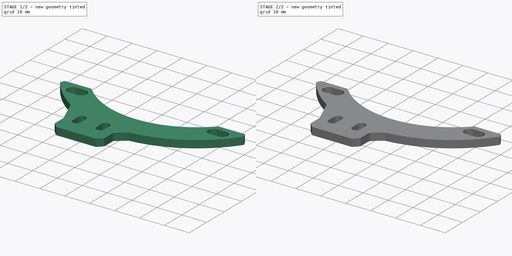
[diagram: build sequence overview — one tinted view per stage of 2, left to right]
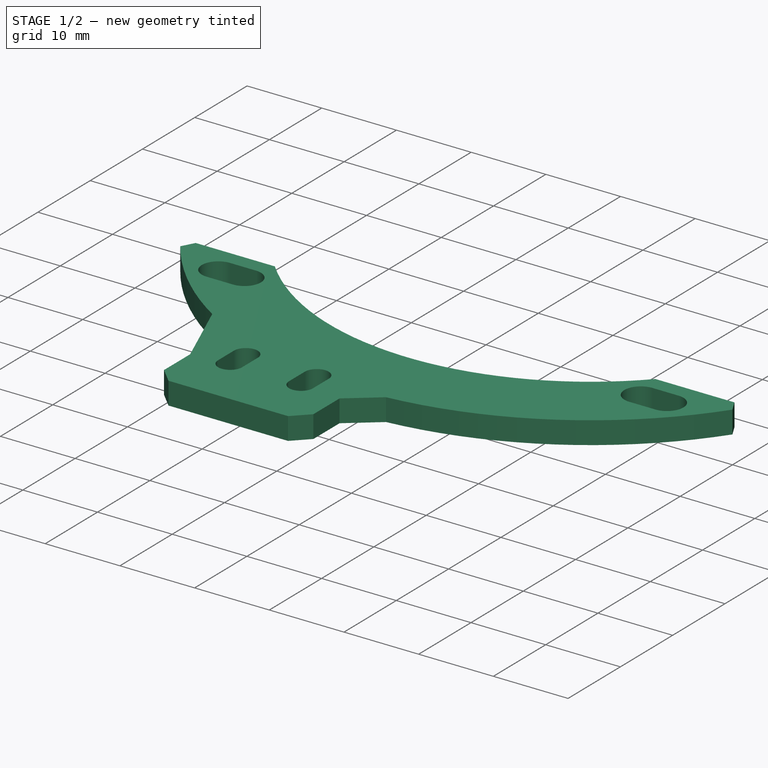
[diagram: stage 1 of 2 — iso view after this stage's code; geometry added in this stage tinted green]
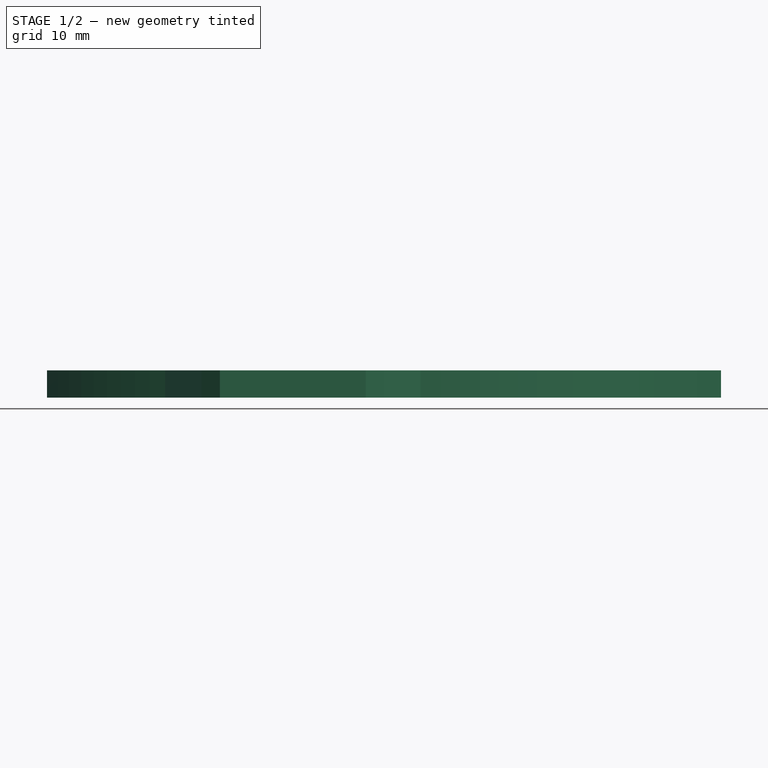
[diagram: stage 1 of 2 — front view after this stage's code; geometry added in this stage tinted green]
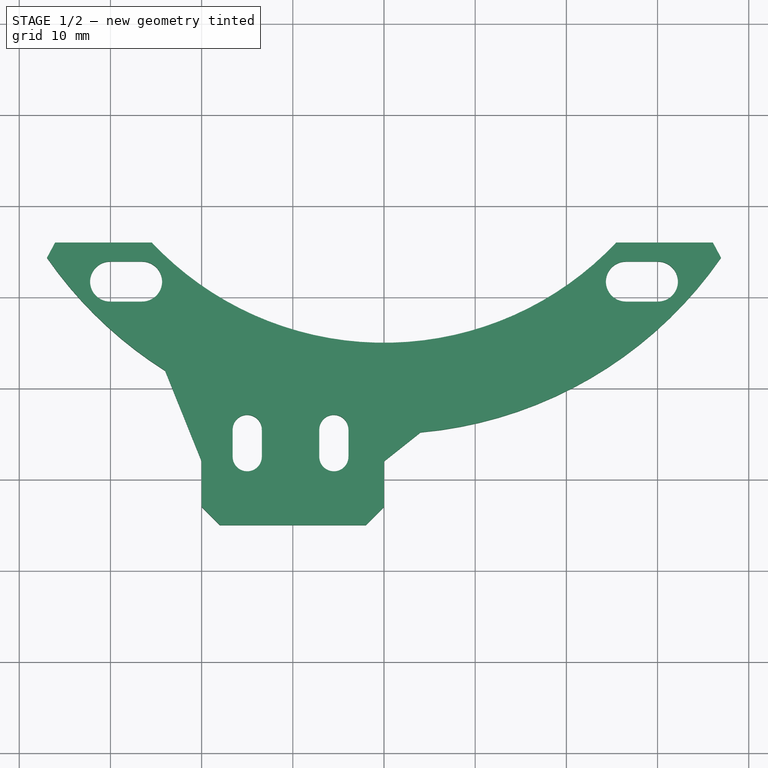
[diagram: stage 1 of 2 — top view after this stage's code; geometry added in this stage tinted green]
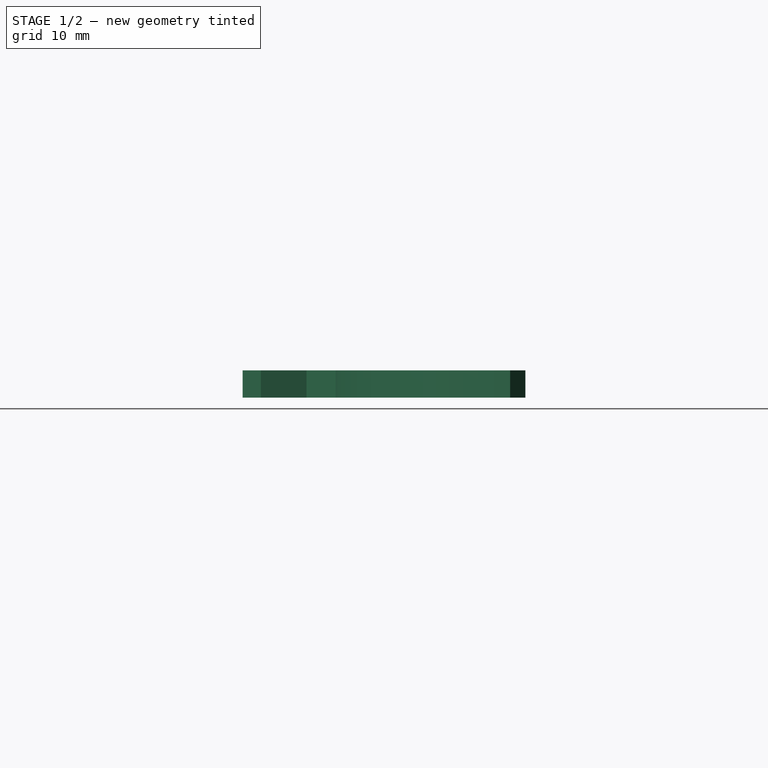
[diagram: stage 1 of 2 — right view after this stage's code; geometry added in this stage tinted green]
FCSTD DOCUMENT  (FreeCAD 0.17R5235 (Git shallow))
Label: C1042-1_endstop_mount
License: CreativeCommons Attribution-ShareAlike
LicenseURL: http://creativecommons.org/licenses/by-sa/4.0/
objects: Sketcher::SketchObject×1, PartDesign::Pad×1, PartDesign::Chamfer×1, PartDesign::Fillet×1, PartDesign::Body×1, App::Part×1, TechDraw::DrawSVGTemplate×1, TechDraw::DrawProjGroupItem×1, TechDraw::DrawProjGroup×1, TechDraw::DrawPage×1
note: 6 computed .brp shape members not serialized (recipe doc carries the construction recipe); baked Part::Feature solids carry a one-line shape summary decoded from their .brp

FEATURE [Sketcher::SketchObject] Sketch
  MapMode = 5
  Support = -> [XY_Plane001]
  sketch-geometry (36):
    g0: Circle [constr] CenterX=0 CenterY=0 CenterZ=0 NormalX=0 NormalY=0 NormalZ=1 AngleXU=0 Radius=34
    g1: LineSegment [constr] StartX=0 StartY=0 StartZ=0 EndX=28.2843 EndY=-28.2843 EndZ=0
    g2: ArcOfCircle CenterX=0 CenterY=0 CenterZ=0 NormalX=0 NormalY=0 NormalZ=1 AngleXU=0 Radius=35 StartAngle=3.89718 EndAngle=5.5276
    g3: LineSegment StartX=-25.4755 StartY=-24 StartZ=0 EndX=-38.0657 EndY=-24 EndZ=0
    g4: LineSegment StartX=25.4755 StartY=-24 StartZ=0 EndX=38.0657 EndY=-24 EndZ=0
    g5: LineSegment StartX=0 StartY=-48 StartZ=0 EndX=0 EndY=-55 EndZ=0
    g6: LineSegment StartX=0 StartY=-55 StartZ=0 EndX=-20 EndY=-55 EndZ=0
    g7: LineSegment StartX=-20 StartY=-55 StartZ=0 EndX=-20 EndY=-48 EndZ=0
    g8: ArcOfCircle CenterX=0 CenterY=0 CenterZ=0 NormalX=0 NormalY=0 NormalZ=1 AngleXU=0 Radius=45 StartAngle=3.70413 EndAngle=4.14985
    g9: ArcOfCircle CenterX=0 CenterY=0 CenterZ=0 NormalX=0 NormalY=0 NormalZ=1 AngleXU=0 Radius=45 StartAngle=4.8014 EndAngle=5.72065
    g10: GeomPoint [constr] X=28.2843 Y=-28.2843 Z=0
    g11: GeomPoint [constr] X=-28.2843 Y=-28.2843 Z=0
    g12: ArcOfCircle CenterX=-30.0343 CenterY=-28.2843 CenterZ=0 NormalX=0 NormalY=0 NormalZ=1 AngleXU=0 Radius=2.2 StartAngle=1.5708 EndAngle=4.71239
    g13: ArcOfCircle CenterX=-26.5343 CenterY=-28.2843 CenterZ=0 NormalX=0 NormalY=0 NormalZ=1 AngleXU=0 Radius=2.2 StartAngle=4.71239 EndAngle=7.85398
    g14: LineSegment StartX=-30.0343 StartY=-30.4843 StartZ=0 EndX=-26.5343 EndY=-30.4843 EndZ=0
    g15: LineSegment StartX=-30.0343 StartY=-26.0843 StartZ=0 EndX=-26.5343 EndY=-26.0843 EndZ=0
    g16: ArcOfCircle CenterX=26.5343 CenterY=-28.2843 CenterZ=0 NormalX=0 NormalY=0 NormalZ=1 AngleXU=0 Radius=2.2 StartAngle=1.5708 EndAngle=4.71239
    g17: ArcOfCircle CenterX=30.0343 CenterY=-28.2843 CenterZ=0 NormalX=0 NormalY=0 NormalZ=1 AngleXU=0 Radius=2.2 StartAngle=4.71239 EndAngle=7.85398
    g18: LineSegment StartX=26.5343 StartY=-30.4843 StartZ=0 EndX=30.0343 EndY=-30.4843 EndZ=0
    g19: LineSegment StartX=26.5343 StartY=-26.0843 StartZ=0 EndX=30.0343 EndY=-26.0843 EndZ=0
    g20: LineSegment [constr] StartX=28.2843 StartY=-26.0843 StartZ=0 EndX=28.2843 EndY=-30.4843 EndZ=0
    g21: LineSegment [constr] StartX=-28.2843 StartY=-26.0843 StartZ=0 EndX=-28.2843 EndY=-30.4843 EndZ=0
    g22: LineSegment [constr] StartX=26.5343 StartY=-28.2843 StartZ=0 EndX=30.0343 EndY=-28.2843 EndZ=0
    g23: LineSegment [constr] StartX=-30.0343 StartY=-28.2843 StartZ=0 EndX=-26.5343 EndY=-28.2843 EndZ=0
    g24: ArcOfCircle CenterX=-15 CenterY=-44.5 CenterZ=0 NormalX=0 NormalY=0 NormalZ=1 AngleXU=0 Radius=1.6 StartAngle=0 EndAngle=3.14159
    g25: ArcOfCircle CenterX=-15 CenterY=-47.5 CenterZ=0 NormalX=0 NormalY=0 NormalZ=1 AngleXU=0 Radius=1.6 StartAngle=3.14159 EndAngle=6.28319
    g26: LineSegment StartX=-16.6 StartY=-44.5 StartZ=0 EndX=-16.6 EndY=-47.5 EndZ=0
    g27: LineSegment StartX=-13.4 StartY=-44.5 StartZ=0 EndX=-13.4 EndY=-47.5 EndZ=0
    g28: ArcOfCircle CenterX=-5.5 CenterY=-47.5 CenterZ=0 NormalX=0 NormalY=0 NormalZ=1 AngleXU=0 Radius=1.6 StartAngle=3.14159 EndAngle=6.28319
    g29: ArcOfCircle CenterX=-5.5 CenterY=-44.5 CenterZ=0 NormalX=0 NormalY=0 NormalZ=1 AngleXU=0 Radius=1.6 StartAngle=0 EndAngle=3.14159
    g30: LineSegment StartX=-3.9 StartY=-47.5 StartZ=0 EndX=-3.9 EndY=-44.5 EndZ=0
    g31: LineSegment StartX=-7.1 StartY=-47.5 StartZ=0 EndX=-7.1 EndY=-44.5 EndZ=0
    g32: LineSegment StartX=-24 StartY=-38.0657 StartZ=0 EndX=-20 EndY=-48 EndZ=0
    g33: LineSegment StartX=0 StartY=-48 StartZ=0 EndX=4 EndY=-44.8219 EndZ=0
    g34: LineSegment [constr] StartX=-7.1 StartY=-44.5 StartZ=0 EndX=-3.9 EndY=-44.5 EndZ=0
    g35: LineSegment [constr] StartX=-7.1 StartY=-47.5 StartZ=0 EndX=-3.9 EndY=-47.5 EndZ=0
  constraints (96):
    c: PointOnObject(g0,g-2)
    c: Radius(g0) = 34
    c: Coincident(g0,g-1)
    c: Coincident(g0,g1)
    c: Angle(g1,g-1) = 0.785398
    c: Distance(g1) = 40
    c: Coincident(g2,g-1)
    c: Radius(g2) = 35
    c: Coincident(g2,g3)
    c: Horizontal(g3)
    c: Coincident(g4,g2)
    c: Horizontal(g4)
    c: PointOnObject(g2,g4)
    c: Coincident(g5,g6)
    c: Coincident(g6,g7)
    c: Horizontal(g6)
    c: Vertical(g5)
    c: Vertical(g7)
    c: Coincident(g8,g-1)
    c: Coincident(g8,g3)
    c: Coincident(g9,g-1)
    c: Coincident(g9,g4)
    c: Equal(g8,g9)
    c: Radius(g9) = 45
    c: DistanceY(g3,g-1) = 24
    c: DistanceY(g6,g-1) = 55
    c: DistanceX(g6,g6) = 20
    c: DistanceX(g5,g-1) = 0
    c: Coincident(g1,g10)
    c: Symmetric(g11,g1,g-2)
    c: Tangent(g12,g15) = 1.5708
    c: Tangent(g12,g14) = -1.5708
    c: Tangent(g14,g13) = -1.5708
    c: Tangent(g15,g13) = 1.5708
    c: Horizontal(g14)
    c: Equal(g12,g13)
    c: Tangent(g16,g19) = 1.5708
    c: Tangent(g16,g18) = -1.5708
    c: Tangent(g18,g17) = -1.5708
    c: Tangent(g19,g17) = 1.5708
    c: Horizontal(g18)
    c: Equal(g16,g17)
    c: PointOnObject(g20,g19)
    c: PointOnObject(g20,g18)
    c: Vertical(g20)
    c: PointOnObject(g1,g20)
    c: Symmetric(g17,g16,g20)
    c: PointOnObject(g21,g15)
    c: PointOnObject(g21,g14)
    c: Vertical(g21)
    c: PointOnObject(g11,g21)
    c: Symmetric(g13,g12,g21)
    c: Equal(g13,g16)
    c: Radius(g13) = 2.2
    c: Coincident(g22,g16)
    c: Coincident(g22,g17)
    c: PointOnObject(g1,g22)
    c: Coincident(g23,g12)
    c: Coincident(g23,g13)
    c: PointOnObject(g11,g23)
    c: Equal(g23,g22)
    c: DistanceX(g23,g23) = 3.5
    c: Tangent(g24,g27) = 1.5708
    c: Tangent(g24,g26) = -1.5708
    c: Tangent(g26,g25) = -1.5708
    c: Tangent(g27,g25) = 1.5708
    c: Vertical(g26)
    c: Equal(g24,g25)
    c: Tangent(g28,g31) = 1.5708
    c: Tangent(g28,g30) = -1.5708
    c: Tangent(g30,g29) = -1.5708
    c: Tangent(g31,g29) = 1.5708
    c: Vertical(g30)
    c: Equal(g28,g29)
    c: Equal(g25,g28)
    c: Radius(g28) = 1.6
    c: DistanceY(g6,g25) = 7.5
    c: DistanceY(g25,g24) = 3
    c: DistanceX(g25,g28) = 9.5
    c: PointOnObject(g32,g8)
    c: PointOnObject(g32,g7)
    c: Coincident(g32,g7)
    c: Coincident(g32,g8)
    c: Coincident(g33,g9)
    c: Coincident(g5,g33)
    c: Equal(g7,g5)
    c: DistanceY(g7,g7) = 7
    c: Coincident(g34,g29)
    c: Coincident(g34,g29)
    c: PointOnObject(g24,g34)
    c: DistanceX(g6,g25) = 5
    c: Coincident(g35,g28)
    c: Coincident(g35,g28)
    c: PointOnObject(g25,g35)
    c: DistanceX(g8,g6) = 4
    c: DistanceX(g5,g9) = 4
FEATURE [PartDesign::Pad] Pad
  Length = 3
  Length2 = 100
  Profile = -> Sketch
  Type = 0
FEATURE [PartDesign::Chamfer] Chamfer
  Base = -> Pad [Edge20,Edge11,Edge1,Edge23]
  BaseFeature = -> Pad
  Size = 2
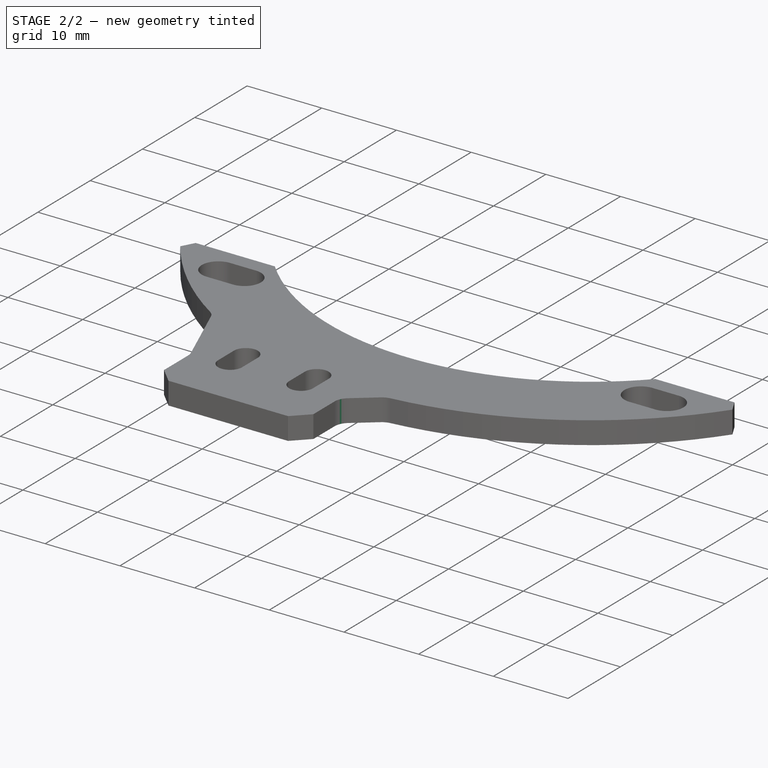
[diagram: stage 2 of 2 — iso view after this stage's code; geometry added in this stage tinted green]
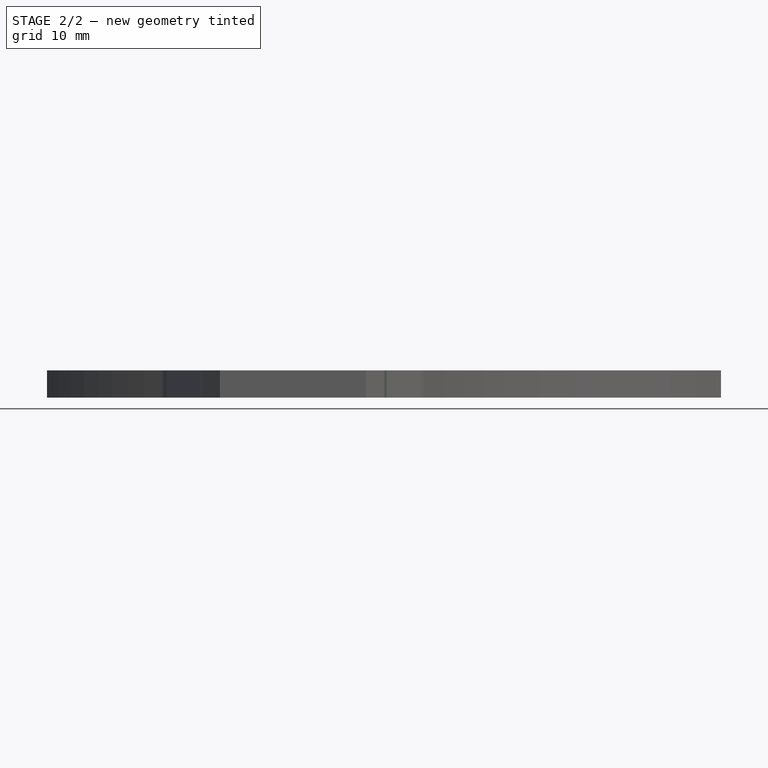
[diagram: stage 2 of 2 — front view after this stage's code; geometry added in this stage tinted green]
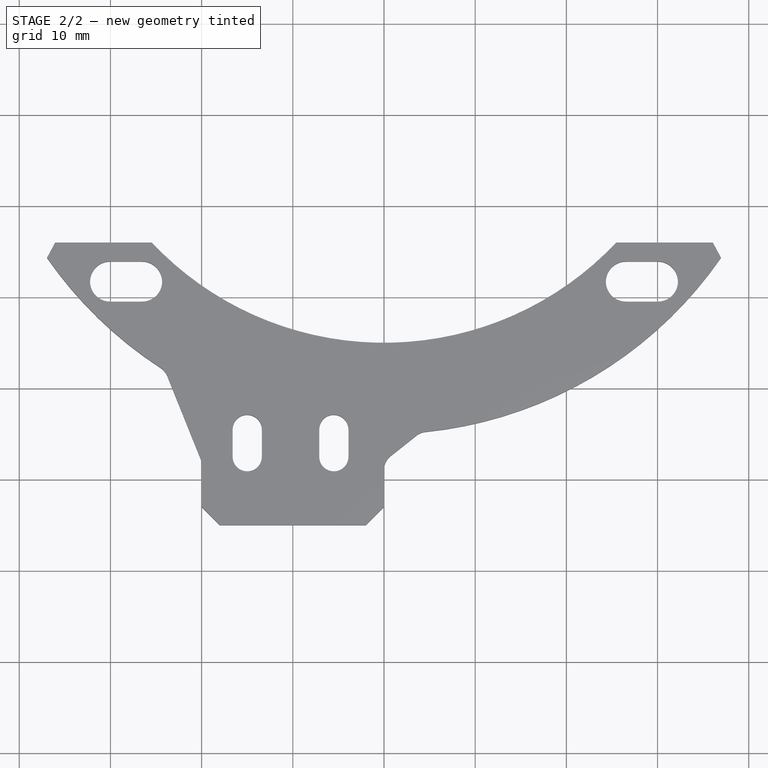
[diagram: stage 2 of 2 — top view after this stage's code; geometry added in this stage tinted green]
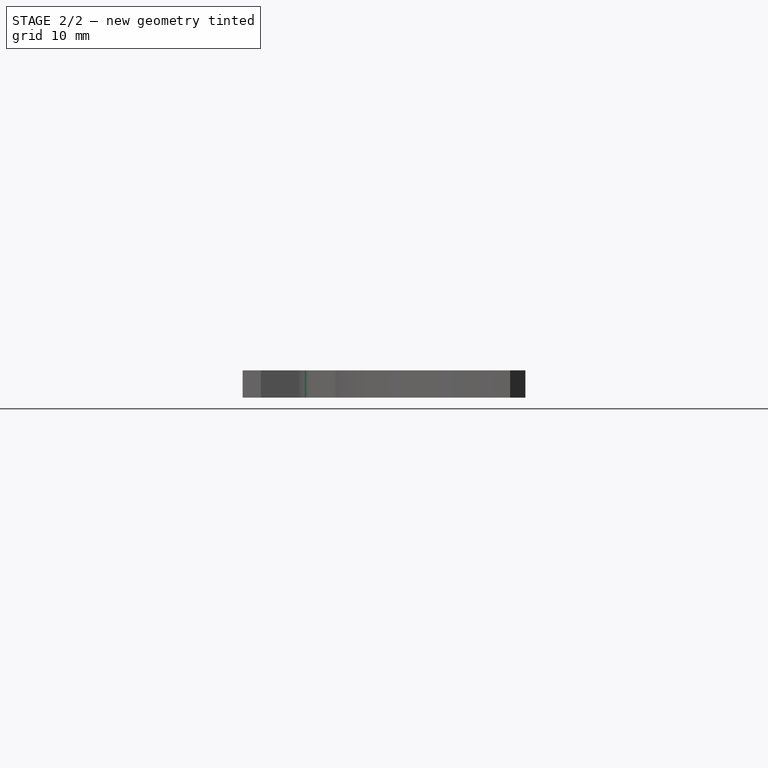
[diagram: stage 2 of 2 — right view after this stage's code; geometry added in this stage tinted green]
FEATURE [PartDesign::Fillet] Fillet
  Base = -> Chamfer [Edge36,Edge3,Edge74,Edge73]
  BaseFeature = -> Chamfer
  Radius = 2
FEATURE [PartDesign::Body] PadBody
  Group = -> [Sketch,Pad,Chamfer,Fillet]
  Origin = -> Origin001
  Tip = -> Fillet
FEATURE [App::Part] Part
  Group = -> [PadBody]
  License = CC BY 3.0
  LicenseURL = http://creativecommons.org/licenses/by/3.0/
  Origin = -> Origin
FEATURE [TechDraw::DrawSVGTemplate] Template
  Height = 210
  Orientation = 1
  Width = 297
FEATURE [TechDraw::DrawProjGroupItem] ProjItem  label="Front"
  CoarseView = false
  Direction = (0,0,1)
  Focus = 100
  HardHidden = false
  IsoCount = 0
  IsoHidden = false
  IsoVisible = false
  LockPosition = false
  Perspective = false
  Rotation = 0
  RotationVector = (1,0,0)
  ScaleType = 0
  SeamHidden = false
  SeamVisible = false
  SmoothHidden = false
  SmoothVisible = false
  Source = -> [Fillet]
  Type = 0
  X = 0
  Y = 0
FEATURE [TechDraw::DrawProjGroup] ProjGroup
  Anchor = -> ProjItem
  AutoDistribute = true
  CubeDirs = (6) [(0,-1,-6.12323e-17),(0,-6.12323e-17,1),(-1,0,0),(0,6.12323e-17,-1),(1,0,0),(0,1,6.12323e-17)]
  CubeRotations = (6) [(1,0,0),(1,0,0),(0,6.12323e-17,1),(-1,0,0),(0,-6.12323e-17,-1),(1,0,0)]
  LockPosition = false
  ProjectionType = 0
  Rotation = 0
  ScaleType = 2
  Source = -> [Fillet]
  Views = -> [ProjItem]
  X = 148.5
  Y = 105
  spacingX = 15
  spacingY = 15
FEATURE [TechDraw::DrawPage] Page
  KeepUpdated = true
  ProjectionType = 0
  Template = -> Template
  Views = -> [ProjGroup]
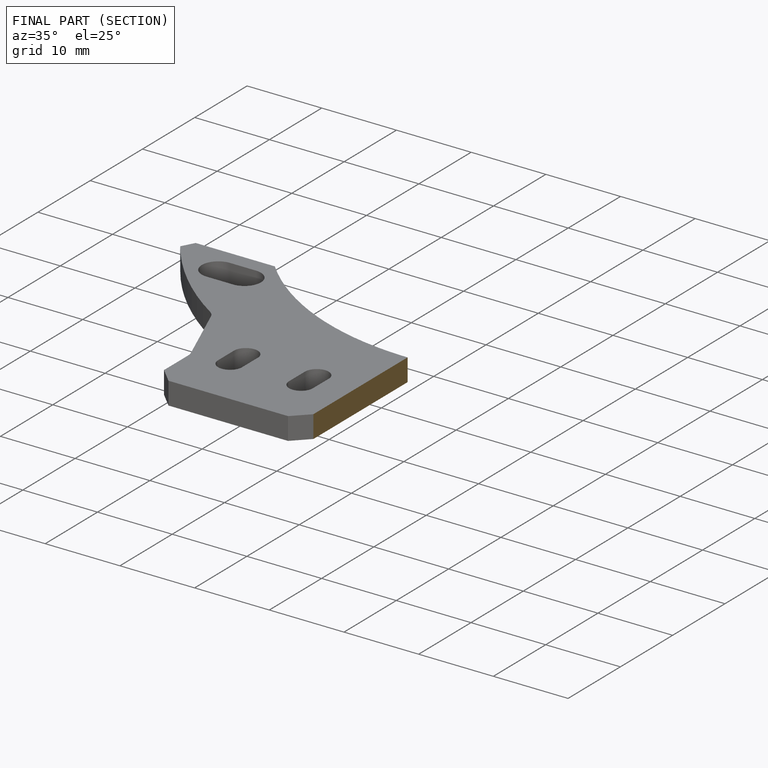
[diagram: finished part — half-section view (interior)]
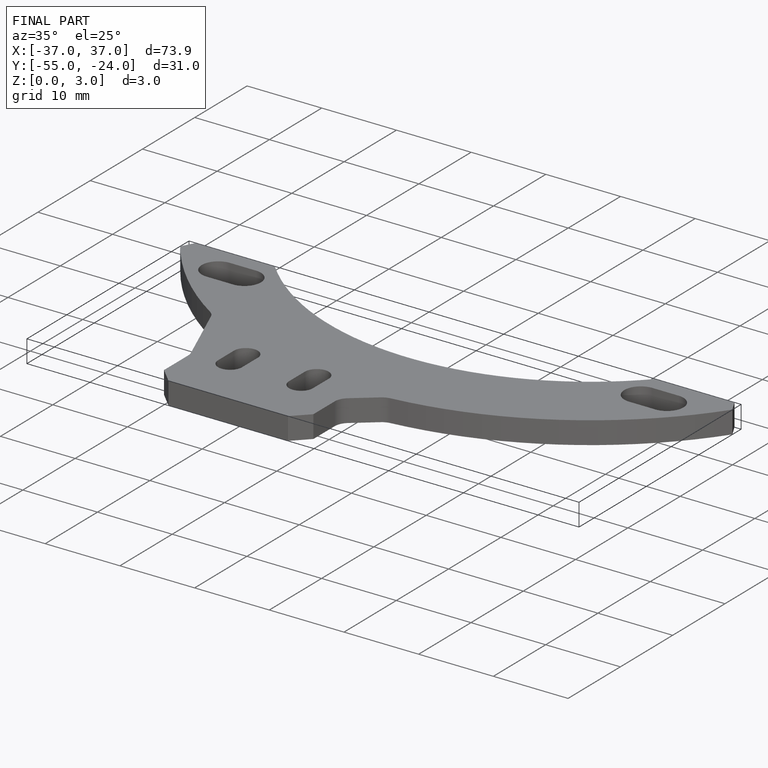
[diagram: finished part — iso view with bounding-box wireframe]
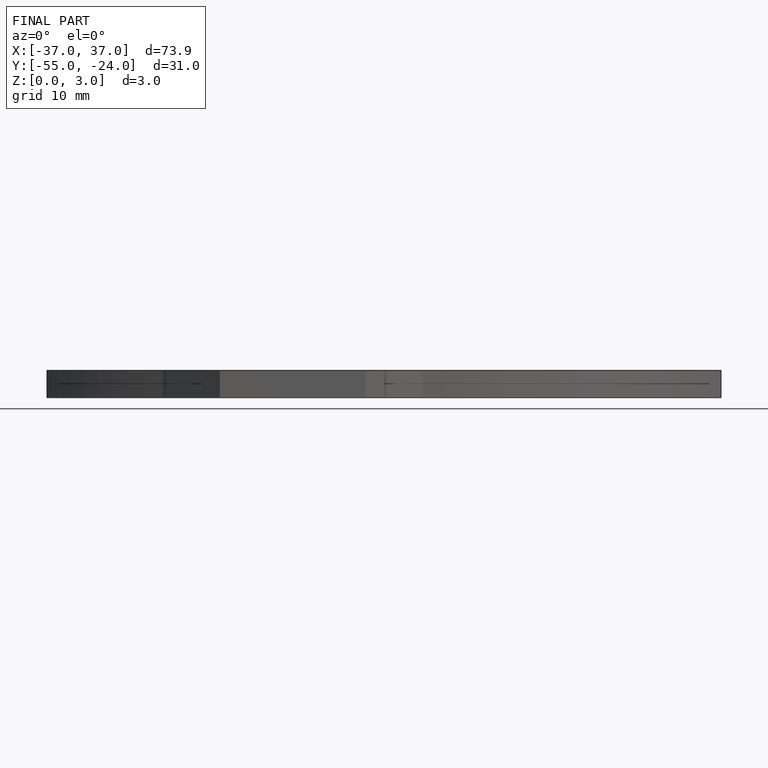
[diagram: finished part — front view with bounding-box wireframe]
